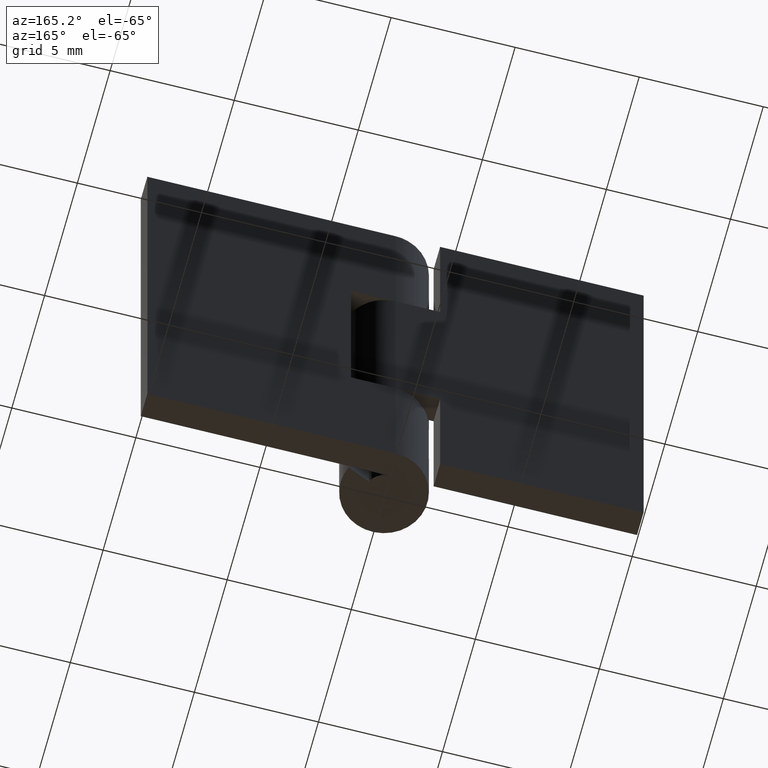
[diagram: clean part render]
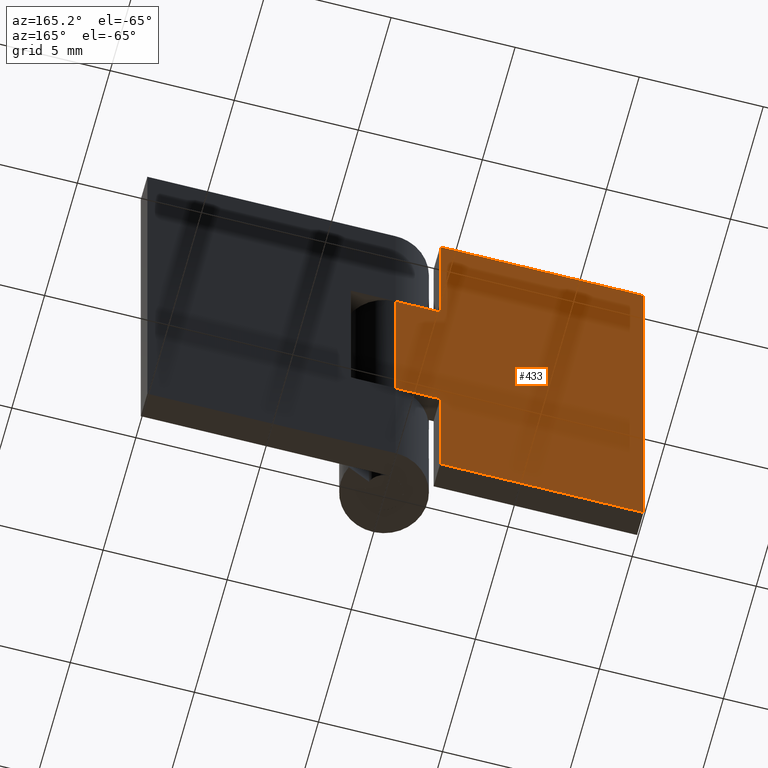
[diagram: same view with one face highlighted and labeled with its STEP entity id]
A machine part, auxiliary view. The second image highlights one B-rep face of the part: STEP entity #433.
In plain terms, the highlighted face is a freeform B-spline surface patch.
Its self-contained STEP definition (entity closure, byte-faithful):
#51=CARTESIAN_POINT('',(-1.800003000000000,1.750000000000030,5.999999999999901));
#52=VERTEX_POINT('',#51);
#58=CARTESIAN_POINT('',(0.0,1.750000000000030,5.999999999999901));
#59=VERTEX_POINT('',#58);
#60=CARTESIAN_POINT('',(-1.800003000000000,1.750000000000030,5.999999999999901));
#61=CARTESIAN_POINT('',(0.0,1.750000000000030,5.999999999999901));
#62=QUASI_UNIFORM_CURVE('',1,(#60,#61),.UNSPECIFIED.,.F.,.U.);
#63=EDGE_CURVE('',#52,#59,#62,.T.);
#129=CARTESIAN_POINT('',(-1.800003000000000,1.750000000000030,0.0));
#130=VERTEX_POINT('',#129);
#136=CARTESIAN_POINT('',(-1.800003000000000,1.750000000000030,0.0));
#137=CARTESIAN_POINT('',(-1.800003000000000,1.750000000000030,5.999999999999901));
#138=QUASI_UNIFORM_CURVE('',1,(#136,#137),.UNSPECIFIED.,.F.,.U.);
#139=EDGE_CURVE('',#130,#52,#138,.T.);
#155=CARTESIAN_POINT('',(-1.800003000000000,1.750000000000030,14.0));
#156=VERTEX_POINT('',#155);
#157=CARTESIAN_POINT('',(0.0,1.750000000000030,14.0));
#158=VERTEX_POINT('',#157);
#159=CARTESIAN_POINT('',(-1.800003000000000,1.750000000000030,14.0));
#160=CARTESIAN_POINT('',(0.0,1.750000000000030,14.0));
#161=QUASI_UNIFORM_CURVE('',1,(#159,#160),.UNSPECIFIED.,.F.,.U.);
#162=EDGE_CURVE('',#156,#158,#161,.T.);
#234=CARTESIAN_POINT('',(-1.800003000000000,1.750000000000000,20.0));
#235=VERTEX_POINT('',#234);
#236=CARTESIAN_POINT('',(-1.800003000000000,1.750000000000000,20.0));
#237=CARTESIAN_POINT('',(-1.800003000000000,1.750000000000030,14.0));
#238=QUASI_UNIFORM_CURVE('',1,(#236,#237),.UNSPECIFIED.,.F.,.U.);
#239=EDGE_CURVE('',#235,#156,#238,.T.);
#263=CARTESIAN_POINT('',(-10.0,1.750000000000000,0.0));
#264=VERTEX_POINT('',#263);
#277=CARTESIAN_POINT('',(-10.0,1.750000000000000,20.0));
#278=VERTEX_POINT('',#277);
#284=CARTESIAN_POINT('',(-10.0,1.750000000000000,20.0));
#285=CARTESIAN_POINT('',(-10.0,1.750000000000000,0.0));
#286=QUASI_UNIFORM_CURVE('',1,(#284,#285),.UNSPECIFIED.,.F.,.U.);
#287=EDGE_CURVE('',#278,#264,#286,.T.);
#298=CARTESIAN_POINT('',(-10.0,1.750000000000000,20.0));
#299=CARTESIAN_POINT('',(-1.800003000000000,1.750000000000000,20.0));
#300=QUASI_UNIFORM_CURVE('',1,(#298,#299),.UNSPECIFIED.,.F.,.U.);
#301=EDGE_CURVE('',#278,#235,#300,.T.);
#317=CARTESIAN_POINT('',(-10.0,1.750000000000000,0.0));
#318=CARTESIAN_POINT('',(-1.800003000000000,1.750000000000030,0.0));
#319=QUASI_UNIFORM_CURVE('',1,(#317,#318),.UNSPECIFIED.,.F.,.U.);
#320=EDGE_CURVE('',#264,#130,#319,.T.);
#408=CARTESIAN_POINT('',(0.0,1.750000000000030,14.0));
#409=CARTESIAN_POINT('',(0.0,1.750000000000030,5.999999999999901));
#410=QUASI_UNIFORM_CURVE('',1,(#408,#409),.UNSPECIFIED.,.F.,.U.);
#411=EDGE_CURVE('',#158,#59,#410,.T.);
#418=CARTESIAN_POINT('',(-10.499499980618060,1.750000000000000,-0.998999961236120));
#419=CARTESIAN_POINT('',(-10.499499980618060,1.750000000000000,20.999000497677919));
#420=CARTESIAN_POINT('',(0.499500248838961,1.750000000000000,-0.998999961236120));
#421=CARTESIAN_POINT('',(0.499500248838961,1.750000000000000,20.999000497677919));
#422=B_SPLINE_SURFACE_WITH_KNOTS('',1,1,((#418,#420),(#419,#421)),.UNSPECIFIED.,.F.,.F.,.U.,(2,2),(2,2),(0.0,21.998000458914039),(0.0,10.999000229457019),.UNSPECIFIED.);
#423=ORIENTED_EDGE('',*,*,#63,.F.);
#424=ORIENTED_EDGE('',*,*,#139,.F.);
#425=ORIENTED_EDGE('',*,*,#320,.F.);
#426=ORIENTED_EDGE('',*,*,#287,.F.);
#427=ORIENTED_EDGE('',*,*,#301,.T.);
#428=ORIENTED_EDGE('',*,*,#239,.T.);
#429=ORIENTED_EDGE('',*,*,#162,.T.);
#430=ORIENTED_EDGE('',*,*,#411,.T.);
#431=EDGE_LOOP('',(#423,#424,#425,#426,#427,#428,#429,#430));
#432=FACE_OUTER_BOUND('',#431,.T.);
#433=ADVANCED_FACE('',(#432),#422,.T.);